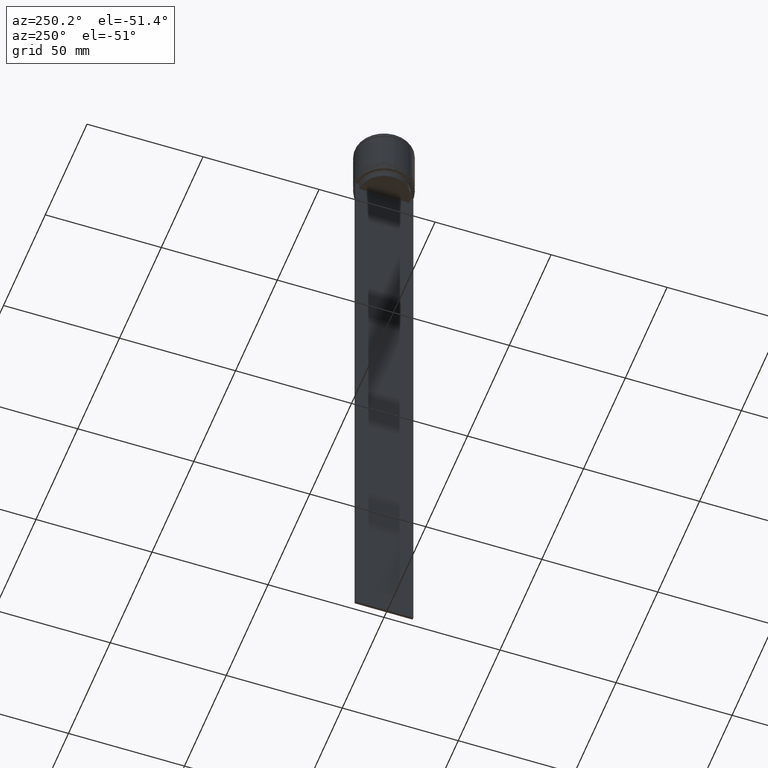
[diagram: clean part render]
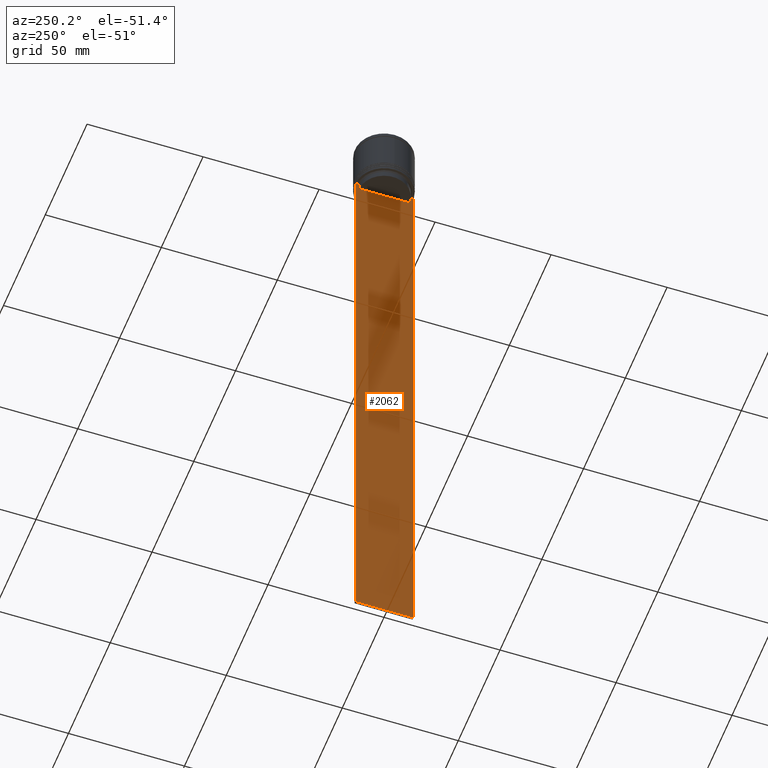
[diagram: same view with one face highlighted and labeled with its STEP entity id]
A machine part, auxiliary view. The second image highlights one B-rep face of the part: STEP entity #2062.
In plain terms, the highlighted planar face has unit normal (-1, 0, 0).
Its self-contained STEP definition (entity closure, byte-faithful):
#39 = CARTESIAN_POINT ( 'NONE',  ( -0.5000000000000000000, -11.05536450423839412, -22.83333718996392747 ) ) ;
#106 = EDGE_CURVE ( 'NONE', #432, #232, #1884, .T. ) ;
#127 = LINE ( 'NONE', #1045, #1319 ) ;
#142 = FACE_OUTER_BOUND ( 'NONE', #1001, .T. ) ;
#178 = CARTESIAN_POINT ( 'NONE',  ( -0.5000000000000000000, -11.38902980942626897, -22.50000000000000000 ) ) ;
#221 = ORIENTED_EDGE ( 'NONE', *, *, #814, .F. ) ;
#232 = VERTEX_POINT ( 'NONE', #1847 ) ;
#245 = VERTEX_POINT ( 'NONE', #254 ) ;
#254 = CARTESIAN_POINT ( 'NONE',  ( -0.5000000000000000000, 12.50000000000000711, -294.5000000000000568 ) ) ;
#270 = DIRECTION ( 'NONE',  ( 0.000000000000000000, -1.000000000000000000, 0.000000000000000000 ) ) ;
#296 = LINE ( 'NONE', #1918, #529 ) ;
#368 = VERTEX_POINT ( 'NONE', #1188 ) ;
#373 = CARTESIAN_POINT ( 'NONE',  ( -0.5000000000000000000, 10.88852607105297032, 0.000000000000000000 ) ) ;
#376 = VECTOR ( 'NONE', #270, 1000.000000000000000 ) ;
#382 = CARTESIAN_POINT ( 'NONE',  ( -0.5000000000000000000, 10.88852607105297032, -22.99999999999999645 ) ) ;
#419 = DIRECTION ( 'NONE',  ( -0.000000000000000000, -0.000000000000000000, 1.000000000000000000 ) ) ;
#431 = VECTOR ( 'NONE', #1796, 1000.000000000000000 ) ;
#432 = VERTEX_POINT ( 'NONE', #1733 ) ;
#449 = CARTESIAN_POINT ( 'NONE',  ( -0.5000000000000000000, -12.49999999999999289, -22.50000000000000000 ) ) ;
#453 = PLANE ( 'NONE',  #1881 ) ;
#491 = DIRECTION ( 'NONE',  ( 0.000000000000000000, 0.000000000000000000, -1.000000000000000000 ) ) ;
#498 = VECTOR ( 'NONE', #943, 1000.000000000000000 ) ;
#500 = LINE ( 'NONE', #937, #895 ) ;
#529 = VECTOR ( 'NONE', #1581, 1000.000000000000000 ) ;
#547 = ORIENTED_EDGE ( 'NONE', *, *, #1541, .F. ) ;
#558 = VERTEX_POINT ( 'NONE', #1927 ) ;
#579 = VERTEX_POINT ( 'NONE', #1292 ) ;
#641 = CARTESIAN_POINT ( 'NONE',  ( -0.5000000000000000000, 11.38902980942626897, -22.50000000000000000 ) ) ;
#660 = CARTESIAN_POINT ( 'NONE',  ( -0.5000000000000000000, -11.22219891450653151, -22.66667035398018726 ) ) ;
#677 = LINE ( 'NONE', #373, #2026 ) ;
#679 = CARTESIAN_POINT ( 'NONE',  ( -0.5000000000000000000, 11.22219891375843126, -22.66667035472756808 ) ) ;
#695 = CARTESIAN_POINT ( 'NONE',  ( -0.5000000000000000000, 12.38991525394746596, -22.50000000000000000 ) ) ;
#715 = ORIENTED_EDGE ( 'NONE', *, *, #1649, .F. ) ;
#750 = LINE ( 'NONE', #1577, #1219 ) ;
#766 = EDGE_CURVE ( 'NONE', #1507, #368, #677, .T. ) ;
#784 = CARTESIAN_POINT ( 'NONE',  ( -0.5000000000000000000, -12.49999999999999289, 2.519992006393609874 ) ) ;
#814 = EDGE_CURVE ( 'NONE', #558, #432, #750, .T. ) ;
#836 = CARTESIAN_POINT ( 'NONE',  ( -0.5000000000000000000, 10.90000000000000924, -25.50000000000000000 ) ) ;
#841 = VECTOR ( 'NONE', #1407, 1000.000000000000000 ) ;
#850 = EDGE_CURVE ( 'NONE', #1105, #579, #919, .T. ) ;
#860 = VECTOR ( 'NONE', #1673, 1000.000000000000000 ) ;
#895 = VECTOR ( 'NONE', #491, 1000.000000000000000 ) ;
#904 = LINE ( 'NONE', #449, #376 ) ;
#919 = LINE ( 'NONE', #1237, #841 ) ;
#920 = DIRECTION ( 'NONE',  ( -1.000000000000000000, 0.000000000000000000, 0.000000000000000000 ) ) ;
#937 = CARTESIAN_POINT ( 'NONE',  ( -0.5000000000000000000, 12.50000000000000711, 2.519992006393609874 ) ) ;
#943 = DIRECTION ( 'NONE',  ( 0.000000000000000000, -1.000000000000000000, 0.000000000000000000 ) ) ;
#988 = LINE ( 'NONE', #1158, #431 ) ;
#1001 = EDGE_LOOP ( 'NONE', ( #1717, #1041, #1788, #2065, #1143, #1300, #547, #715, #1446, #221, #1732, #1199 ) ) ;
#1032 = CARTESIAN_POINT ( 'NONE',  ( -0.5000000000000000000, 12.50000000000000711, -22.50000000000000000 ) ) ;
#1041 = ORIENTED_EDGE ( 'NONE', *, *, #850, .F. ) ;
#1045 = CARTESIAN_POINT ( 'NONE',  ( -0.5000000000000000000, -12.49999999999999289, -294.5000000000000568 ) ) ;
#1105 = VERTEX_POINT ( 'NONE', #695 ) ;
#1142 = CARTESIAN_POINT ( 'NONE',  ( -0.5000000000000000000, 11.05536450345590715, -22.83333719074559554 ) ) ;
#1143 = ORIENTED_EDGE ( 'NONE', *, *, #1257, .F. ) ;
#1152 = VERTEX_POINT ( 'NONE', #1509 ) ;
#1158 = CARTESIAN_POINT ( 'NONE',  ( -0.5000000000000000000, -12.49999999999999289, -22.50000000000000000 ) ) ;
#1188 = CARTESIAN_POINT ( 'NONE',  ( -0.5000000000000000000, 10.88852607105296855, -25.50000000000000000 ) ) ;
#1199 = ORIENTED_EDGE ( 'NONE', *, *, #766, .F. ) ;
#1219 = VECTOR ( 'NONE', #419, 1000.000000000000000 ) ;
#1237 = CARTESIAN_POINT ( 'NONE',  ( -0.5000000000000000000, -12.49999999999999289, -22.50000000000000000 ) ) ;
#1242 = EDGE_CURVE ( 'NONE', #1485, #1105, #904, .T. ) ;
#1257 = EDGE_CURVE ( 'NONE', #1392, #245, #127, .T. ) ;
#1258 = VERTEX_POINT ( 'NONE', #2027 ) ;
#1292 = CARTESIAN_POINT ( 'NONE',  ( -0.5000000000000000000, 11.38902980942626897, -22.50000000000000000 ) ) ;
#1293 = CARTESIAN_POINT ( 'NONE',  ( -0.5000000000000000000, 10.88852607105297032, -22.99999999999999645 ) ) ;
#1300 = ORIENTED_EDGE ( 'NONE', *, *, #1677, .F. ) ;
#1319 = VECTOR ( 'NONE', #2044, 1000.000000000000000 ) ;
#1392 = VERTEX_POINT ( 'NONE', #1767 ) ;
#1407 = DIRECTION ( 'NONE',  ( 0.000000000000000000, -1.000000000000000000, 0.000000000000000000 ) ) ;
#1408 = DIRECTION ( 'NONE',  ( 0.000000000000000000, 0.000000000000000000, 1.000000000000000000 ) ) ;
#1413 = EDGE_CURVE ( 'NONE', #1485, #245, #500, .T. ) ;
#1446 = ORIENTED_EDGE ( 'NONE', *, *, #106, .F. ) ;
#1485 = VERTEX_POINT ( 'NONE', #1032 ) ;
#1507 = VERTEX_POINT ( 'NONE', #382 ) ;
#1509 = CARTESIAN_POINT ( 'NONE',  ( -0.5000000000000000000, -12.38991525394746596, -22.50000000000000000 ) ) ;
#1541 = EDGE_CURVE ( 'NONE', #1152, #1258, #988, .T. ) ;
#1554 = EDGE_CURVE ( 'NONE', #368, #558, #1652, .T. ) ;
#1577 = CARTESIAN_POINT ( 'NONE',  ( -0.5000000000000000000, -10.88852607105297032, 0.000000000000000000 ) ) ;
#1581 = DIRECTION ( 'NONE',  ( 0.000000000000000000, 0.000000000000000000, -1.000000000000000000 ) ) ;
#1649 = EDGE_CURVE ( 'NONE', #232, #1152, #2024, .T. ) ;
#1652 = LINE ( 'NONE', #836, #860 ) ;
#1673 = DIRECTION ( 'NONE',  ( 0.000000000000000000, -1.000000000000000000, 0.000000000000000000 ) ) ;
#1677 = EDGE_CURVE ( 'NONE', #1258, #1392, #296, .T. ) ;
#1717 = ORIENTED_EDGE ( 'NONE', *, *, #1801, .F. ) ;
#1732 = ORIENTED_EDGE ( 'NONE', *, *, #1554, .F. ) ;
#1733 = CARTESIAN_POINT ( 'NONE',  ( -0.5000000000000000000, -10.88852607105297032, -22.99999999999999645 ) ) ;
#1767 = CARTESIAN_POINT ( 'NONE',  ( -0.5000000000000000000, -12.49999999999999289, -294.5000000000000568 ) ) ;
#1788 = ORIENTED_EDGE ( 'NONE', *, *, #1242, .F. ) ;
#1796 = DIRECTION ( 'NONE',  ( 0.000000000000000000, -1.000000000000000000, 0.000000000000000000 ) ) ;
#1801 = EDGE_CURVE ( 'NONE', #579, #1507, #2070, .T. ) ;
#1847 = CARTESIAN_POINT ( 'NONE',  ( -0.5000000000000000000, -11.38902980942626897, -22.50000000000000000 ) ) ;
#1881 = AXIS2_PLACEMENT_3D ( 'NONE', #784, #920, #1408 ) ;
#1884 = B_SPLINE_CURVE_WITH_KNOTS ( 'NONE', 3,
 ( #1970, #39, #660, #178 ),
 .UNSPECIFIED., .F., .F.,
 ( 4, 4 ),
 ( 0.05041323384703231408, 0.05112713601261610619 ),
 .UNSPECIFIED. ) ;
#1918 = CARTESIAN_POINT ( 'NONE',  ( -0.5000000000000000000, -12.49999999999999289, 2.519992006393609874 ) ) ;
#1927 = CARTESIAN_POINT ( 'NONE',  ( -0.5000000000000000000, -10.88852607105296855, -25.50000000000000000 ) ) ;
#1970 = CARTESIAN_POINT ( 'NONE',  ( -0.5000000000000000000, -10.88852607105297032, -22.99999999999999645 ) ) ;
#2005 = CARTESIAN_POINT ( 'NONE',  ( -0.5000000000000000000, -12.49999999999999289, -22.50000000000000000 ) ) ;
#2008 = DIRECTION ( 'NONE',  ( 0.000000000000000000, 0.000000000000000000, -1.000000000000000000 ) ) ;
#2024 = LINE ( 'NONE', #2005, #498 ) ;
#2026 = VECTOR ( 'NONE', #2008, 1000.000000000000000 ) ;
#2027 = CARTESIAN_POINT ( 'NONE',  ( -0.5000000000000000000, -12.49999999999999289, -22.50000000000000000 ) ) ;
#2044 = DIRECTION ( 'NONE',  ( 0.000000000000000000, 1.000000000000000000, 0.000000000000000000 ) ) ;
#2062 = ADVANCED_FACE ( 'NONE', ( #142 ), #453, .T. ) ;
#2065 = ORIENTED_EDGE ( 'NONE', *, *, #1413, .T. ) ;
#2070 = B_SPLINE_CURVE_WITH_KNOTS ( 'NONE', 3,
 ( #641, #679, #1142, #1293 ),
 .UNSPECIFIED., .F., .F.,
 ( 4, 4 ),
 ( 0.01935560801904635808, 0.02006307108468587813 ),
 .UNSPECIFIED. ) ;